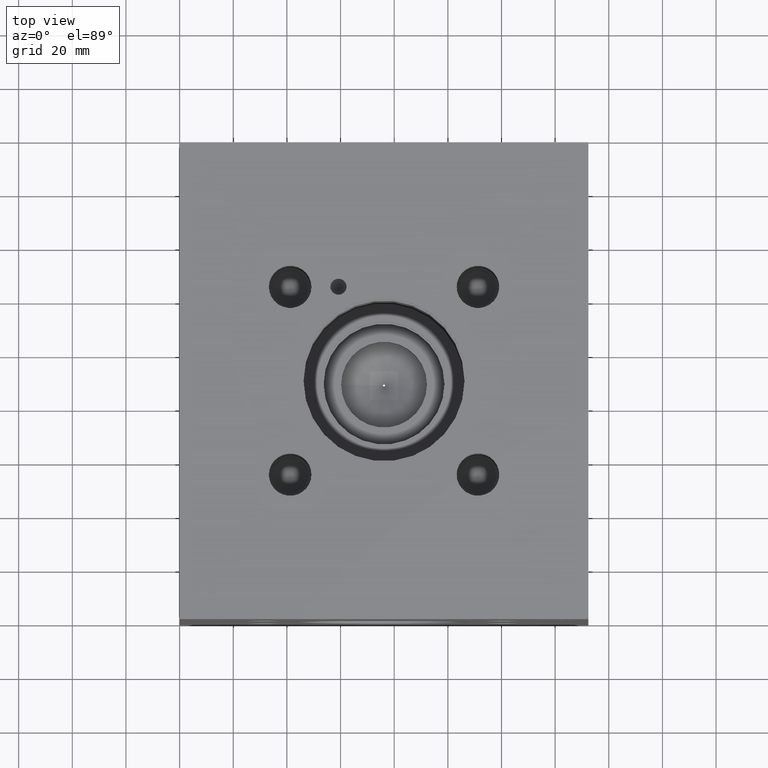
[diagram: clean part render]
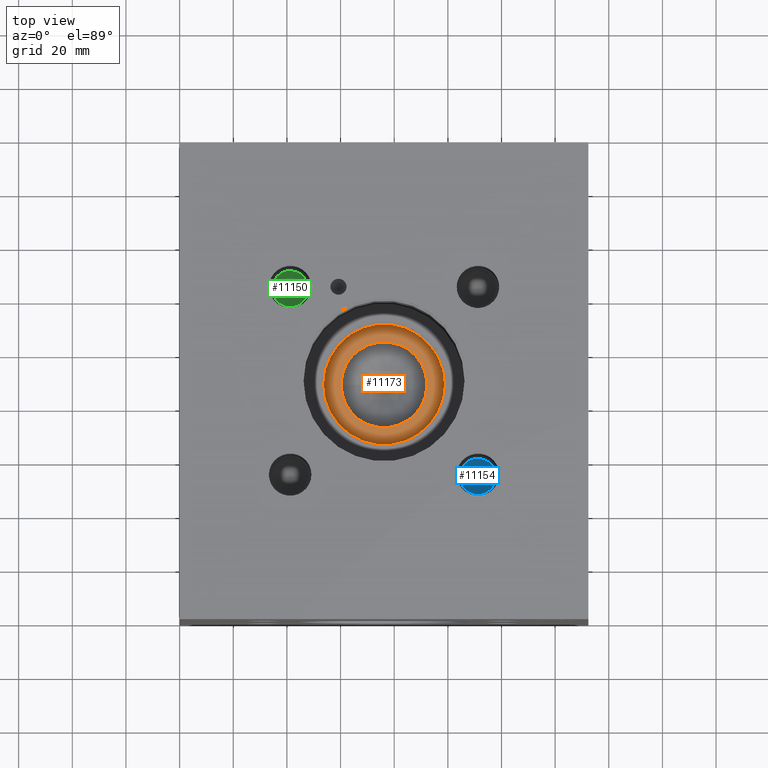
[diagram: same view with three faces highlighted in distinct colors, each labeled with its STEP entity id]
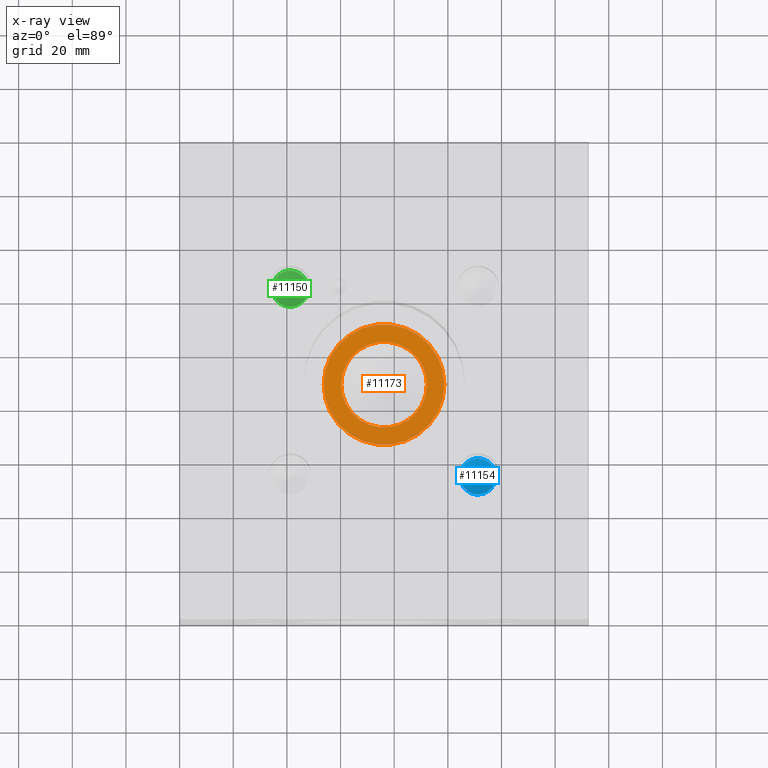
[diagram: x-ray of the same camera — body ghosted, the three highlighted faces saturated]
A machine part, top view with three faces highlighted in distinct colors.
The next image is the same camera in x-ray (body ghosted, the three faces saturated) — at least one of them is partly hidden behind the body in this view.
Their STEP definitions:

[orange] entity #11173 — the highlighted planar face has unit normal (0, 0, -1).
#657=CIRCLE('',#11907,22.5044);
#658=CIRCLE('',#11908,22.5044);
#659=CIRCLE('',#11910,16.002);
#660=CIRCLE('',#11911,16.002);
#746=FACE_BOUND('',#1972,.T.);
#1319=FACE_OUTER_BOUND('',#1971,.T.);
#1971=EDGE_LOOP('',(#9763,#9764));
#1972=EDGE_LOOP('',(#9765,#9766));
#5225=VERTEX_POINT('',#18850);
#5226=VERTEX_POINT('',#18852);
#5227=VERTEX_POINT('',#18856);
#5228=VERTEX_POINT('',#18857);
#6755=EDGE_CURVE('',#5225,#5226,#657,.T.);
#6756=EDGE_CURVE('',#5226,#5225,#658,.T.);
#6757=EDGE_CURVE('',#5227,#5228,#659,.T.);
#6758=EDGE_CURVE('',#5228,#5227,#660,.T.);
#9763=ORIENTED_EDGE('',*,*,#6756,.F.);
#9764=ORIENTED_EDGE('',*,*,#6755,.F.);
#9765=ORIENTED_EDGE('',*,*,#6757,.T.);
#9766=ORIENTED_EDGE('',*,*,#6758,.T.);
#10192=PLANE('',#11909);
#11173=ADVANCED_FACE('',(#1319,#746),#10192,.F.);
#11907=AXIS2_PLACEMENT_3D('',#18853,#14430,#14431);
#11908=AXIS2_PLACEMENT_3D('',#18854,#14432,#14433);
#11909=AXIS2_PLACEMENT_3D('',#18855,#14434,#14435);
#11910=AXIS2_PLACEMENT_3D('',#18858,#14436,#14437);
#11911=AXIS2_PLACEMENT_3D('',#18859,#14438,#14439);
#14430=DIRECTION('center_axis',(0.,0.,-1.));
#14431=DIRECTION('ref_axis',(1.,0.,0.));
#14432=DIRECTION('center_axis',(0.,0.,-1.));
#14433=DIRECTION('ref_axis',(1.,0.,0.));
#14434=DIRECTION('center_axis',(0.,0.,-1.));
#14435=DIRECTION('ref_axis',(-1.,0.,0.));
#14436=DIRECTION('center_axis',(0.,0.,-1.));
#14437=DIRECTION('ref_axis',(1.,0.,0.));
#14438=DIRECTION('center_axis',(0.,0.,-1.));
#14439=DIRECTION('ref_axis',(1.,0.,0.));
#18850=CARTESIAN_POINT('',(53.6956,88.9,54.7116));
#18852=CARTESIAN_POINT('',(98.7044,88.9,54.7116));
#18853=CARTESIAN_POINT('Origin',(76.2,88.9,54.7116));
#18854=CARTESIAN_POINT('Origin',(76.2,88.9,54.7116));
#18855=CARTESIAN_POINT('Origin',(92.202,88.9,54.7116));
#18856=CARTESIAN_POINT('',(92.202,88.9,54.7116));
#18857=CARTESIAN_POINT('',(60.198,88.9,54.7116));
#18858=CARTESIAN_POINT('Origin',(76.2,88.9,54.7116));
#18859=CARTESIAN_POINT('Origin',(76.2,88.9,54.7116));

[blue] entity #11154 — the highlighted conical surface has half-angle 60 deg.
#118=CONICAL_SURFACE('',#11853,3.37185,1.0471975511966);
#622=CIRCLE('',#11854,6.7437);
#623=CIRCLE('',#11855,6.7437);
#1300=FACE_OUTER_BOUND('',#1946,.T.);
#1946=EDGE_LOOP('',(#9673,#9674,#9675,#9676));
#3064=LINE('',#18751,#4153);
#4153=VECTOR('',#14313,3.37185);
#5187=VERTEX_POINT('',#18747);
#5188=VERTEX_POINT('',#18748);
#5189=VERTEX_POINT('',#18750);
#6707=EDGE_CURVE('',#5187,#5188,#622,.T.);
#6708=EDGE_CURVE('',#5188,#5189,#3064,.T.);
#6709=EDGE_CURVE('',#5188,#5187,#623,.T.);
#9673=ORIENTED_EDGE('',*,*,#6707,.T.);
#9674=ORIENTED_EDGE('',*,*,#6708,.T.);
#9675=ORIENTED_EDGE('',*,*,#6708,.F.);
#9676=ORIENTED_EDGE('',*,*,#6709,.T.);
#11154=ADVANCED_FACE('',(#1300),#118,.F.);
#11853=AXIS2_PLACEMENT_3D('',#18746,#14309,#14310);
#11854=AXIS2_PLACEMENT_3D('',#18749,#14311,#14312);
#11855=AXIS2_PLACEMENT_3D('',#18752,#14314,#14315);
#14309=DIRECTION('center_axis',(0.,0.,1.));
#14310=DIRECTION('ref_axis',(1.,0.,0.));
#14311=DIRECTION('center_axis',(0.,0.,1.));
#14312=DIRECTION('ref_axis',(1.,0.,0.));
#14313=DIRECTION('',(0.866025403784439,1.06057523872491E-16,-0.5));
#14314=DIRECTION('center_axis',(0.,0.,1.));
#14315=DIRECTION('ref_axis',(1.,0.,0.));
#18746=CARTESIAN_POINT('Origin',(111.2012,53.8988,97.1967414948329));
#18747=CARTESIAN_POINT('',(117.9449,53.8988,99.14348));
#18748=CARTESIAN_POINT('',(104.4575,53.8988,99.14348));
#18749=CARTESIAN_POINT('Origin',(111.2012,53.8988,99.14348));
#18750=CARTESIAN_POINT('',(111.2012,53.8988,95.2500029896659));
#18751=CARTESIAN_POINT('',(107.82935,53.8988,97.1967414948329));
#18752=CARTESIAN_POINT('Origin',(111.2012,53.8988,99.14348));

[green] entity #11150 — the highlighted conical surface has half-angle 60 deg.
#117=CONICAL_SURFACE('',#11842,3.37185,1.0471975511966);
#615=CIRCLE('',#11843,6.7437);
#616=CIRCLE('',#11844,6.7437);
#1296=FACE_OUTER_BOUND('',#1941,.T.);
#1941=EDGE_LOOP('',(#9655,#9656,#9657,#9658));
#3061=LINE('',#18729,#4150);
#4150=VECTOR('',#14288,3.37185);
#5179=VERTEX_POINT('',#18725);
#5180=VERTEX_POINT('',#18726);
#5181=VERTEX_POINT('',#18728);
#6697=EDGE_CURVE('',#5179,#5180,#615,.T.);
#6698=EDGE_CURVE('',#5180,#5181,#3061,.T.);
#6699=EDGE_CURVE('',#5180,#5179,#616,.T.);
#9655=ORIENTED_EDGE('',*,*,#6697,.T.);
#9656=ORIENTED_EDGE('',*,*,#6698,.T.);
#9657=ORIENTED_EDGE('',*,*,#6698,.F.);
#9658=ORIENTED_EDGE('',*,*,#6699,.T.);
#11150=ADVANCED_FACE('',(#1296),#117,.F.);
#11842=AXIS2_PLACEMENT_3D('',#18724,#14284,#14285);
#11843=AXIS2_PLACEMENT_3D('',#18727,#14286,#14287);
#11844=AXIS2_PLACEMENT_3D('',#18730,#14289,#14290);
#14284=DIRECTION('center_axis',(0.,0.,1.));
#14285=DIRECTION('ref_axis',(1.,0.,0.));
#14286=DIRECTION('center_axis',(0.,0.,1.));
#14287=DIRECTION('ref_axis',(1.,0.,0.));
#14288=DIRECTION('',(0.866025403784439,1.06057523872491E-16,-0.5));
#14289=DIRECTION('center_axis',(0.,0.,1.));
#14290=DIRECTION('ref_axis',(1.,0.,0.));
#18724=CARTESIAN_POINT('Origin',(41.1988,123.9012,97.1967414948329));
#18725=CARTESIAN_POINT('',(47.9425,123.9012,99.14348));
#18726=CARTESIAN_POINT('',(34.4551,123.9012,99.14348));
#18727=CARTESIAN_POINT('Origin',(41.1988,123.9012,99.14348));
#18728=CARTESIAN_POINT('',(41.1988,123.9012,95.2500029896659));
#18729=CARTESIAN_POINT('',(37.82695,123.9012,97.1967414948329));
#18730=CARTESIAN_POINT('Origin',(41.1988,123.9012,99.14348));